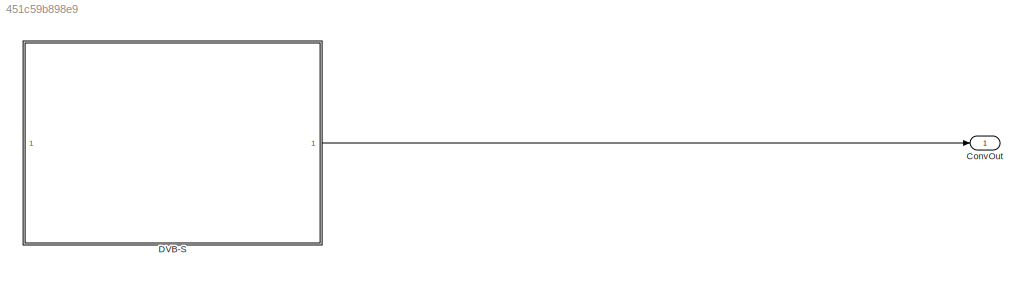
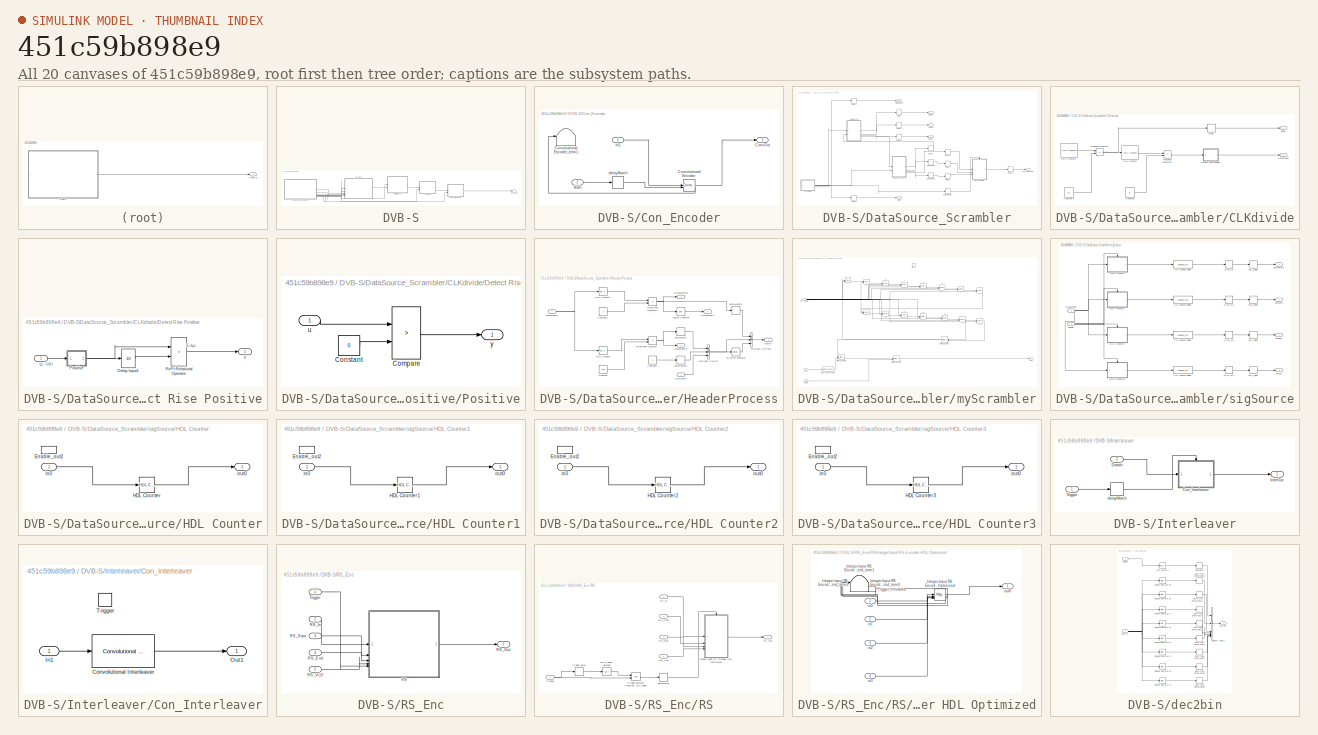
[diagram: thumbnail index - all 20 canvases of the model, root first then tree order]
MODEL slx_451c59b898e9
KIND model
CONFIG AbsTol = auto
CONFIG EnableMultiTasking = off
CONFIG FixedStep = auto
CONFIG MaxStep = auto
CONFIG MinStep = auto
CONFIG RelTol = 1e-3
CONFIG SampleTimeConstraint = Unconstrained
CONFIG SolverName = VariableStepAuto
CONFIG StartTime = 0.0
CONFIG StopTime = 10.0
WORKSPACE source: mxarray member
WORKSPACE HDLVAXIManagerConfig: hdlverifier.internal.AXIMaster.ConfigParams (value not decoded)
BLOCK [Outport] ConvOut
  VectorParamsAs1DForOutWhenUnconnected = off
BLOCK [SubSystem] DVB-S
BLOCK [SubSystem] DVB-S/Con_Encoder
BLOCK [Outport] DVB-S/Con_Encoder/ConvOut
  SampleTime = 5e-09
BLOCK [Reference] DVB-S/Con_Encoder/Convolutional Encoder  REF=whdledac/Convolutional Encoder
  SourceBlock = whdledac/Convolutional Encoder
  SourceType = Convolutional Encoder
BLOCK [Terminator] DVB-S/Con_Encoder/Convolutional Encoder_term1
BLOCK [Inport] DVB-S/Con_Encoder/In1
  OutDataTypeStr = boolean
  PortDimensions = 1
  SampleTime = 5e-09
BLOCK [Inport] DVB-S/Con_Encoder/VldIn
  OutDataTypeStr = boolean
  Port = 2
  PortDimensions = 1
  SampleTime = 5e-09
BLOCK [Delay] DVB-S/Con_Encoder/delayMatch
  DelayLength = double(1)
  InitialCondition = 0
  InputPortMap = u0
  SampleTime = 5e-09
BLOCK [Outport] DVB-S/ConvOut
  SampleTime = 5e-09
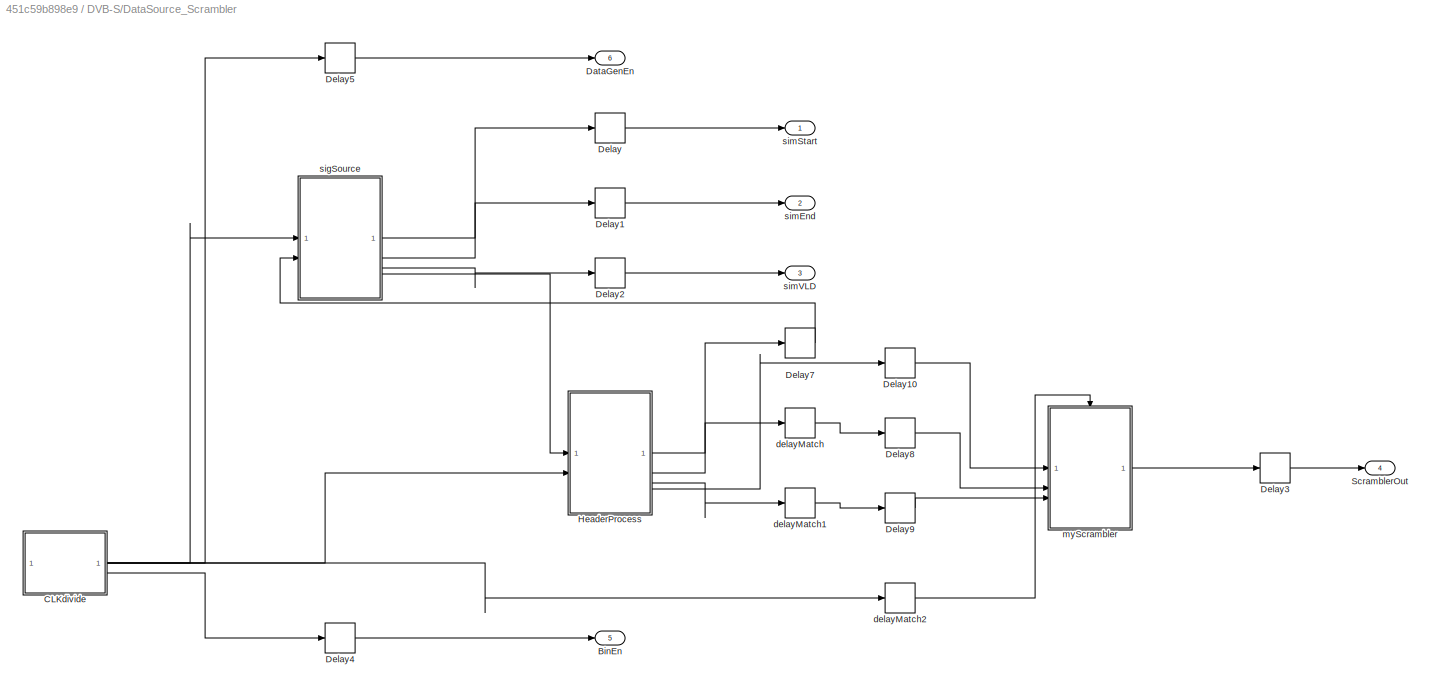
BLOCK [SubSystem] DVB-S/DataSource_Scrambler
BLOCK [Outport] DVB-S/DataSource_Scrambler/BinEn
  Port = 5
  SampleTime = 5e-09
  VectorParamsAs1DForOutWhenUnconnected = off
BLOCK [SubSystem] DVB-S/DataSource_Scrambler/CLKdivide
BLOCK [Outport] DVB-S/DataSource_Scrambler/CLKdivide/BinEn
  Port = 2
  SampleTime = 5e-09
  VectorParamsAs1DForOutWhenUnconnected = off
BLOCK [Constant] DVB-S/DataSource_Scrambler/CLKdivide/Constant
  OutDataTypeStr = uint8
  SampleTime = 1/fs
  Value = 8
  VectorParams1D = off
BLOCK [Constant] DVB-S/DataSource_Scrambler/CLKdivide/Constant1
  OutDataTypeStr = uint8
  SampleTime = 1/fs
  Value = 25
  VectorParams1D = off
BLOCK [Outport] DVB-S/DataSource_Scrambler/CLKdivide/DataGenEn
  SampleTime = 5e-09
  VectorParamsAs1DForOutWhenUnconnected = off
BLOCK [Delay] DVB-S/DataSource_Scrambler/CLKdivide/Delay
  DelayLength = 1
  InputPortMap = u0
BLOCK [SubSystem] DVB-S/DataSource_Scrambler/CLKdivide/Detect Rise Positive
BLOCK [UnitDelay] DVB-S/DataSource_Scrambler/CLKdivide/Detect Rise Positive/Delay Input1
  Description = Store in Global RAM
  DisableCoverage = on
  HasFrameUpgradeWarning = on
  InitialCondition = vinit
  SampleTime = -1
BLOCK [RelationalOperator] DVB-S/DataSource_Scrambler/CLKdivide/Detect Rise Positive/FixPt Relational Operator
  InputSameDT = off
  Operator = >
  OutDataTypeStr = boolean
  ZeroCross = off
BLOCK [SubSystem] DVB-S/DataSource_Scrambler/CLKdivide/Detect Rise Positive/Positive
BLOCK [RelationalOperator] DVB-S/DataSource_Scrambler/CLKdivide/Detect Rise Positive/Positive/Compare
  Operator = >
  OutDataTypeStr = boolean
  ZeroCross = off
BLOCK [Constant] DVB-S/DataSource_Scrambler/CLKdivide/Detect Rise Positive/Positive/Constant
  DisableCoverage = on
  OutDataTypeStr = Inherit: Inherit via back propagation
  PreserveConstantTs = on
  SampleTime = -1
  Value = 0
BLOCK [Inport] DVB-S/DataSource_Scrambler/CLKdivide/Detect Rise Positive/Positive/u
  OutDataTypeStr = boolean
  SampleTime = 5e-09
BLOCK [Outport] DVB-S/DataSource_Scrambler/CLKdivide/Detect Rise Positive/Positive/y
  SampleTime = 5e-09
BLOCK [Inport] DVB-S/DataSource_Scrambler/CLKdivide/Detect Rise Positive/U
  OutDataTypeStr = boolean
  SampleTime = 5e-09
BLOCK [Outport] DVB-S/DataSource_Scrambler/CLKdivide/Detect Rise Positive/Y
  SampleTime = 5e-09
BLOCK [Reference] DVB-S/DataSource_Scrambler/CLKdivide/HDL Counter  REF=hdlsllib/Sources/HDL Counter
  SourceBlock = hdlsllib/Sources/HDL Counter
  SourceType = HDL Counter
BLOCK [Reference] DVB-S/DataSource_Scrambler/CLKdivide/HDL Counter2  REF=hdlsllib/Sources/HDL Counter
  SourceBlock = hdlsllib/Sources/HDL Counter
  SourceType = HDL Counter
BLOCK [RelationalOperator] DVB-S/DataSource_Scrambler/CLKdivide/Relational Operator
  InputSameDT = off
  Operator = ==
  OutDataTypeStr = boolean
BLOCK [RelationalOperator] DVB-S/DataSource_Scrambler/CLKdivide/Relational Operator1
  InputSameDT = off
  Operator = ==
  OutDataTypeStr = boolean
BLOCK [Outport] DVB-S/DataSource_Scrambler/DataGenEn
  Port = 6
  SampleTime = 5e-09
  VectorParamsAs1DForOutWhenUnconnected = off
BLOCK [Delay] DVB-S/DataSource_Scrambler/Delay
  DelayLength = double(1)
  InitialCondition = 0
  InputPortMap = u0
  SampleTime = 5e-09
BLOCK [Delay] DVB-S/DataSource_Scrambler/Delay1
  DelayLength = double(2)
  InitialCondition = 0
  InputPortMap = u0
  SampleTime = 5e-09
BLOCK [Delay] DVB-S/DataSource_Scrambler/Delay10
  DelayLength = double(1)
  InitialCondition = 0
  InputPortMap = u0
  SampleTime = 5e-09
BLOCK [Delay] DVB-S/DataSource_Scrambler/Delay2
  DelayLength = double(1)
  InitialCondition = 0
  InputPortMap = u0
  SampleTime = 5e-09
BLOCK [Delay] DVB-S/DataSource_Scrambler/Delay3
  DelayLength = double(1)
  InitialCondition = 0
  InputPortMap = u0
  SampleTime = 5e-09
BLOCK [Delay] DVB-S/DataSource_Scrambler/Delay4
  DelayLength = double(1)
  InitialCondition = 0
  InputPortMap = u0
  SampleTime = 5e-09
BLOCK [Delay] DVB-S/DataSource_Scrambler/Delay5
  DelayLength = double(1)
  InitialCondition = 0
  InputPortMap = u0
  SampleTime = 5e-09
BLOCK [Delay] DVB-S/DataSource_Scrambler/Delay7
  DelayLength = double(1)
  InitialCondition = 0
  InputPortMap = u0
  SampleTime = 5e-09
BLOCK [Delay] DVB-S/DataSource_Scrambler/Delay8
  DelayLength = double(1)
  InitialCondition = 0
  InputPortMap = u0
  SampleTime = 5e-09
BLOCK [Delay] DVB-S/DataSource_Scrambler/Delay9
  DelayLength = double(1)
  InitialCondition = 0
  InputPortMap = u0
  SampleTime = 5e-09
BLOCK [SubSystem] DVB-S/DataSource_Scrambler/HeaderProcess
BLOCK [Reference] DVB-S/DataSource_Scrambler/HeaderProcess/Bitwise Operator  REF=simulink/Logic and Bit
Operations/Bitwise
Operator
  SourceBlock = simulink/Logic and Bit\nOperations/Bitwise\nOperator
  SourceType = Bitwise Operator
BLOCK [Constant] DVB-S/DataSource_Scrambler/HeaderProcess/Constant
  OutDataTypeStr = uint8
  SampleTime = 5e-09
  Value = 188
BLOCK [Constant] DVB-S/DataSource_Scrambler/HeaderProcess/Constant1
  OutDataTypeStr = uint8
  SampleTime = 5e-09
  Value = 0
BLOCK [Constant] DVB-S/DataSource_Scrambler/HeaderProcess/Constant2
  OutDataTypeStr = uint8
  SampleTime = 5e-09
  Value = 0
BLOCK [Outport] DVB-S/DataSource_Scrambler/HeaderProcess/DataGenEN
  SampleTime = 5e-09
  VectorParamsAs1DForOutWhenUnconnected = off
BLOCK [Inport] DVB-S/DataSource_Scrambler/HeaderProcess/DataGenEn
  OutDataTypeStr = boolean
  Port = 2
  PortDimensions = 1
  SampleTime = 5e-09
BLOCK [Outport] DVB-S/DataSource_Scrambler/HeaderProcess/DataIn
  Port = 4
  SampleTime = 5e-09
BLOCK [Reference] DVB-S/DataSource_Scrambler/HeaderProcess/HDL Counter  REF=hdlsllib/Sources/HDL Counter
  SourceBlock = hdlsllib/Sources/HDL Counter
  SourceType = HDL Counter
BLOCK [Reference] DVB-S/DataSource_Scrambler/HeaderProcess/HDL Counter1  REF=hdlsllib/Sources/HDL Counter
  SourceBlock = hdlsllib/Sources/HDL Counter
  SourceType = HDL Counter
BLOCK [Logic] DVB-S/DataSource_Scrambler/HeaderProcess/Logical Operator
  AllPortsSameDT = off
  Inputs = 1
  Operator = NOT
  OutDataTypeStr = boolean
  SampleTime = 5e-09
BLOCK [MultiPortSwitch] DVB-S/DataSource_Scrambler/HeaderProcess/Multiport Switch
  DataPortIndices = { double(0) double(1)}
  DataPortOrder = Specify indices
  DiagnosticForDefault = None
  InputSameDT = off
  Inputs = 2
  OutDataTypeStr = uint8
  SampleTime = 5e-09
  SaturateOnIntegerOverflow = off
BLOCK [MultiPortSwitch] DVB-S/DataSource_Scrambler/HeaderProcess/Multiport Switch1
  DataPortIndices = { double(0) double(1)}
  DataPortOrder = Specify indices
  DiagnosticForDefault = None
  InputSameDT = off
  Inputs = 2
  OutDataTypeStr = uint8
  SampleTime = 5e-09
  SaturateOnIntegerOverflow = off
BLOCK [RelationalOperator] DVB-S/DataSource_Scrambler/HeaderProcess/Relational Operator
  InputSameDT = off
  Operator = <=
  OutDataTypeStr = boolean
  SampleTime = 5e-09
BLOCK [RelationalOperator] DVB-S/DataSource_Scrambler/HeaderProcess/Relational Operator1
  InputSameDT = off
  Operator = ==
  OutDataTypeStr = boolean
  SampleTime = 5e-09
BLOCK [Outport] DVB-S/DataSource_Scrambler/HeaderProcess/ScrambleEn
  Port = 2
  SampleTime = 5e-09
  VectorParamsAs1DForOutWhenUnconnected = off
BLOCK [Outport] DVB-S/DataSource_Scrambler/HeaderProcess/ScrambleRst
  Port = 3
  SampleTime = 5e-09
  VectorParamsAs1DForOutWhenUnconnected = off
BLOCK [Delay] DVB-S/DataSource_Scrambler/HeaderProcess/delayMatch
  DelayLength = double(1)
  InitialCondition = 0
  InputPortMap = u0
  SampleTime = 5e-09
BLOCK [Delay] DVB-S/DataSource_Scrambler/HeaderProcess/delayMatch1
  DelayLength = double(1)
  InitialCondition = 0
  InputPortMap = u0
  SampleTime = 5e-09
BLOCK [Delay] DVB-S/DataSource_Scrambler/HeaderProcess/delayMatch2
  DelayLength = double(1)
  InitialCondition = 0
  InputPortMap = u0
  SampleTime = 5e-09
BLOCK [Inport] DVB-S/DataSource_Scrambler/HeaderProcess/simDataIn
  OutDataTypeStr = uint8
  PortDimensions = 1
  SampleTime = 5e-09
BLOCK [Outport] DVB-S/DataSource_Scrambler/ScramblerOut
  Port = 4
  SampleTime = 5e-09
BLOCK [Delay] DVB-S/DataSource_Scrambler/delayMatch
  DelayLength = double(1)
  InitialCondition = 0
  InputPortMap = u0
  SampleTime = 5e-09
BLOCK [Delay] DVB-S/DataSource_Scrambler/delayMatch1
  DelayLength = double(1)
  InitialCondition = 0
  InputPortMap = u0
  SampleTime = 5e-09
BLOCK [Delay] DVB-S/DataSource_Scrambler/delayMatch2
  DelayLength = double(1)
  InitialCondition = 0
  InputPortMap = u0
  SampleTime = 5e-09
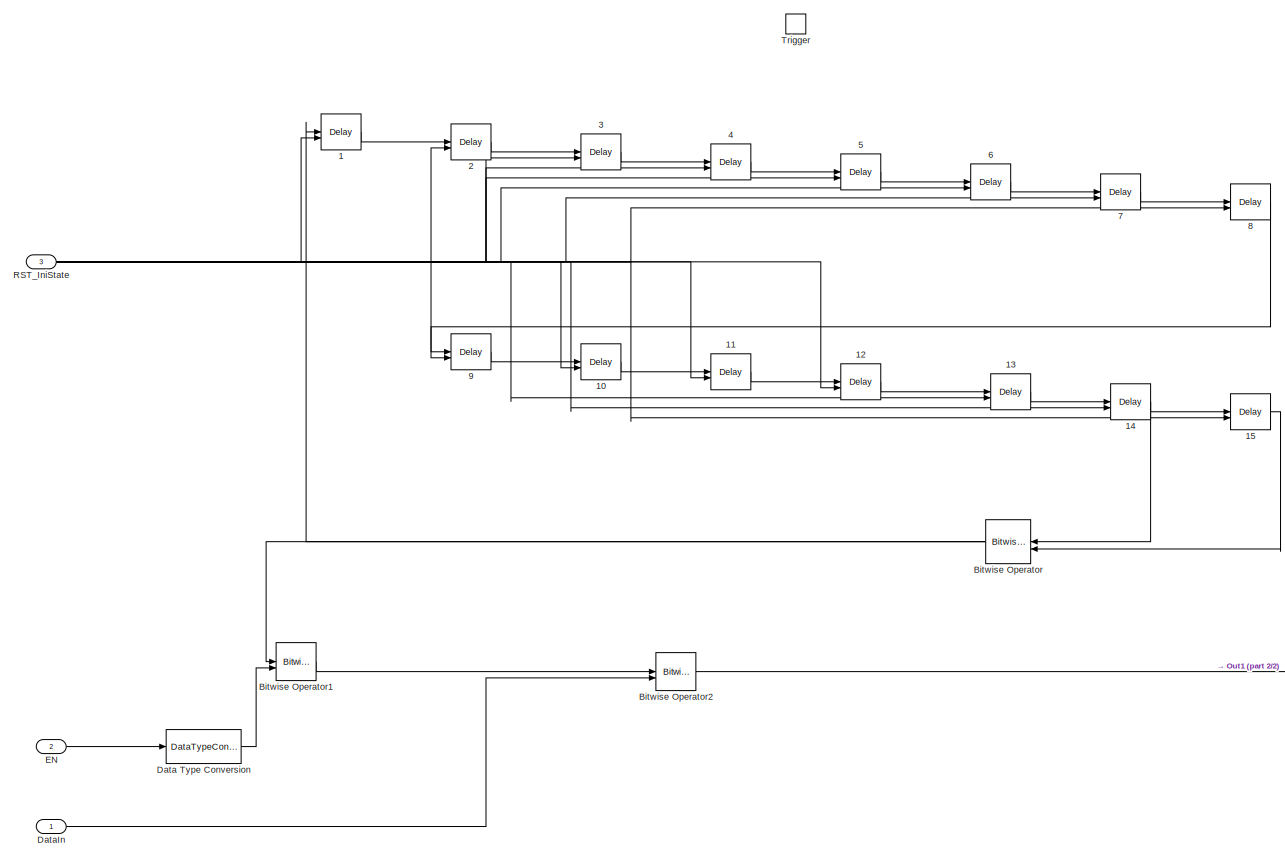
[diagram: DVB-S/DataSource_Scrambler/myScrambler - part 1/2, most of the canvas]
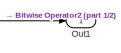
[diagram: DVB-S/DataSource_Scrambler/myScrambler - part 2/2, bottom right region]
BLOCK [SubSystem] DVB-S/DataSource_Scrambler/myScrambler
BLOCK [Delay] DVB-S/DataSource_Scrambler/myScrambler/1
  DelayLength = 1
  ExternalReset = Level
  InitialCondition = iniStates(1)
  InputPortMap = u0,r5
BLOCK [Delay] DVB-S/DataSource_Scrambler/myScrambler/10
  DelayLength = 1
  ExternalReset = Level
  InitialCondition = iniStates(10)
  InputPortMap = u0,r5
BLOCK [Delay] DVB-S/DataSource_Scrambler/myScrambler/11
  DelayLength = 1
  ExternalReset = Level
  InitialCondition = iniStates(11)
  InputPortMap = u0,r5
BLOCK [Delay] DVB-S/DataSource_Scrambler/myScrambler/12
  DelayLength = 1
  ExternalReset = Level
  InitialCondition = iniStates(12)
  InputPortMap = u0,r5
BLOCK [Delay] DVB-S/DataSource_Scrambler/myScrambler/13
  DelayLength = 1
  ExternalReset = Level
  InitialCondition = iniStates(13)
  InputPortMap = u0,r5
BLOCK [Delay] DVB-S/DataSource_Scrambler/myScrambler/14
  DelayLength = 1
  ExternalReset = Level
  InitialCondition = iniStates(14)
  InputPortMap = u0,r5
BLOCK [Delay] DVB-S/DataSource_Scrambler/myScrambler/15
  DelayLength = 1
  ExternalReset = Level
  InitialCondition = iniStates(15)
  InputPortMap = u0,r5
BLOCK [Delay] DVB-S/DataSource_Scrambler/myScrambler/2
  DelayLength = 1
  ExternalReset = Level
  InitialCondition = iniStates(2)
  InputPortMap = u0,r5
BLOCK [Delay] DVB-S/DataSource_Scrambler/myScrambler/3
  DelayLength = 1
  ExternalReset = Level
  InitialCondition = iniStates(3)
  InputPortMap = u0,r5
BLOCK [Delay] DVB-S/DataSource_Scrambler/myScrambler/4
  DelayLength = 1
  ExternalReset = Level
  InitialCondition = iniStates(4)
  InputPortMap = u0,r5
BLOCK [Delay] DVB-S/DataSource_Scrambler/myScrambler/5
  DelayLength = 1
  ExternalReset = Level
  InitialCondition = iniStates(5)
  InputPortMap = u0,r5
BLOCK [Delay] DVB-S/DataSource_Scrambler/myScrambler/6
  DelayLength = 1
  ExternalReset = Level
  InitialCondition = iniStates(6)
  InputPortMap = u0,r5
BLOCK [Delay] DVB-S/DataSource_Scrambler/myScrambler/7
  DelayLength = 1
  ExternalReset = Level
  InitialCondition = iniStates(7)
  InputPortMap = u0,r5
BLOCK [Delay] DVB-S/DataSource_Scrambler/myScrambler/8
  DelayLength = 1
  ExternalReset = Level
  InitialCondition = iniStates(8)
  InputPortMap = u0,r5
BLOCK [Delay] DVB-S/DataSource_Scrambler/myScrambler/9
  DelayLength = 1
  ExternalReset = Level
  InitialCondition = iniStates(9)
  InputPortMap = u0,r5
BLOCK [Reference] DVB-S/DataSource_Scrambler/myScrambler/Bitwise Operator  REF=simulink/Logic and Bit
Operations/Bitwise
Operator
  SourceBlock = simulink/Logic and Bit\nOperations/Bitwise\nOperator
  SourceType = Bitwise Operator
BLOCK [Reference] DVB-S/DataSource_Scrambler/myScrambler/Bitwise Operator1  REF=simulink/Logic and Bit
Operations/Bitwise
Operator
  SourceBlock = simulink/Logic and Bit\nOperations/Bitwise\nOperator
  SourceType = Bitwise Operator
BLOCK [Reference] DVB-S/DataSource_Scrambler/myScrambler/Bitwise Operator2  REF=simulink/Logic and Bit
Operations/Bitwise
Operator
  SourceBlock = simulink/Logic and Bit\nOperations/Bitwise\nOperator
  SourceType = Bitwise Operator
BLOCK [DataTypeConversion] DVB-S/DataSource_Scrambler/myScrambler/Data Type Conversion
  OutDataTypeStr = uint8
  RndMeth = Floor
  SaturateOnIntegerOverflow = off
BLOCK [Inport] DVB-S/DataSource_Scrambler/myScrambler/DataIn
  OutDataTypeStr = uint8
  PortDimensions = 1
BLOCK [Inport] DVB-S/DataSource_Scrambler/myScrambler/EN
  OutDataTypeStr = boolean
  Port = 2
  PortDimensions = 1
BLOCK [Outport] DVB-S/DataSource_Scrambler/myScrambler/Out1
  InitialOutput = 0
BLOCK [Inport] DVB-S/DataSource_Scrambler/myScrambler/RST_IniState
  OutDataTypeStr = boolean
  Port = 3
  PortDimensions = 1
BLOCK [TriggerPort] DVB-S/DataSource_Scrambler/myScrambler/Trigger
  OutDataTypeStr = boolean
  PortDimensions = 1
  StatesWhenEnabling = held
  VariantControl = (inherit)
BLOCK [SubSystem] DVB-S/DataSource_Scrambler/sigSource
BLOCK [Lookup_n-D] DVB-S/DataSource_Scrambler/sigSource/1-D Lookup Table
  BreakpointsForDimension1 = [0:18800-1]'
  BreakpointsForDimension1FirstPoint = 10
  BreakpointsForDimension1Spacing = 12
  BreakpointsForDimension2FirstPoint = 10
  BreakpointsForDimension2Spacing = 12
  IndexSearchMethod = Evenly spaced points
  InputPortMap = u0
  InternalRulePriority = Speed
  InterpMethod = Flat
  LookupTableObject = ''
  NumberOfTableDimensions = 1
  OutDataTypeStr = uint8
  RndMeth = Simplest
  Table = sourceData
BLOCK [Lookup_n-D] DVB-S/DataSource_Scrambler/sigSource/1-D Lookup Table1
  BreakpointsForDimension1 = [0:204-1]'
  BreakpointsForDimension1FirstPoint = 10
  BreakpointsForDimension1Spacing = 12
  BreakpointsForDimension2FirstPoint = 10
  BreakpointsForDimension2Spacing = 12
  IndexSearchMethod = Evenly spaced points
  InputPortMap = u0
  InternalRulePriority = Speed
  InterpMethod = Flat
  LookupTableObject = ''
  NumberOfTableDimensions = 1
  OutDataTypeStr = uint8
  RndMeth = Simplest
  Table = ctrlIn(:,1)
BLOCK [Lookup_n-D] DVB-S/DataSource_Scrambler/sigSource/1-D Lookup Table2
  BreakpointsForDimension1 = [0:204-1]'
  BreakpointsForDimension1FirstPoint = 10
  BreakpointsForDimension1Spacing = 12
  BreakpointsForDimension2FirstPoint = 10
  BreakpointsForDimension2Spacing = 12
  IndexSearchMethod = Evenly spaced points
  InputPortMap = u0
  InternalRulePriority = Speed
  InterpMethod = Flat
  LookupTableObject = ''
  NumberOfTableDimensions = 1
  OutDataTypeStr = uint8
  RndMeth = Simplest
  Table = ctrlIn(:,2)
BLOCK [Lookup_n-D] DVB-S/DataSource_Scrambler/sigSource/1-D Lookup Table3
  BreakpointsForDimension1 = [0:204-1]'
  BreakpointsForDimension1FirstPoint = 10
  BreakpointsForDimension1Spacing = 12
  BreakpointsForDimension2FirstPoint = 10
  BreakpointsForDimension2Spacing = 12
  IndexSearchMethod = Evenly spaced points
  InputPortMap = u0
  InternalRulePriority = Speed
  InterpMethod = Flat
  LookupTableObject = ''
  NumberOfTableDimensions = 1
  OutDataTypeStr = uint8
  RndMeth = Simplest
  Table = ctrlIn(:,3)
BLOCK [DataTypeConversion] DVB-S/DataSource_Scrambler/sigSource/DATA_IN
  OutDataTypeStr = fixdt(0,8,0)
BLOCK [DataTypeConversion] DVB-S/DataSource_Scrambler/sigSource/DATA_IN1
  OutDataTypeStr = boolean
  RndMeth = Floor
  SampleTime = 5e-09
  SaturateOnIntegerOverflow = off
BLOCK [DataTypeConversion] DVB-S/DataSource_Scrambler/sigSource/DATA_IN2
  OutDataTypeStr = boolean
  RndMeth = Floor
  SampleTime = 5e-09
  SaturateOnIntegerOverflow = off
BLOCK [DataTypeConversion] DVB-S/DataSource_Scrambler/sigSource/DATA_IN3
  OutDataTypeStr = boolean
  RndMeth = Floor
  SampleTime = 5e-09
  SaturateOnIntegerOverflow = off
BLOCK [Inport] DVB-S/DataSource_Scrambler/sigSource/DataGenEn
  OutDataTypeStr = boolean
  PortDimensions = 1
  SampleTime = 5e-09
BLOCK [Inport] DVB-S/DataSource_Scrambler/sigSource/Enable
  OutDataTypeStr = boolean
  Port = 2
  SampleTime = 5e-09
BLOCK [SubSystem] DVB-S/DataSource_Scrambler/sigSource/HDL Counter
  MinAlgLoopOccurrences = on
BLOCK [EnablePort] DVB-S/DataSource_Scrambler/sigSource/HDL Counter/Enable_out2
  OutDataTypeStr = boolean
BLOCK [Reference] DVB-S/DataSource_Scrambler/sigSource/HDL Counter/HDL Counter  REF=hdlsllib/Sources/HDL Counter
  SourceBlock = hdlsllib/Sources/HDL Counter
  SourceType = HDL Counter
BLOCK [Inport] DVB-S/DataSource_Scrambler/sigSource/HDL Counter/in0
  OutDataTypeStr = boolean
  SampleTime = 5e-09
BLOCK [Outport] DVB-S/DataSource_Scrambler/sigSource/HDL Counter/out0
  InitialOutput = 0
  OutDataTypeStr = uint32
  SampleTime = 5e-09
BLOCK [SubSystem] DVB-S/DataSource_Scrambler/sigSource/HDL Counter1
  MinAlgLoopOccurrences = on
BLOCK [EnablePort] DVB-S/DataSource_Scrambler/sigSource/HDL Counter1/Enable_out2
  OutDataTypeStr = boolean
BLOCK [Reference] DVB-S/DataSource_Scrambler/sigSource/HDL Counter1/HDL Counter1  REF=hdlsllib/Sources/HDL Counter
  SourceBlock = hdlsllib/Sources/HDL Counter
  SourceType = HDL Counter
BLOCK [Inport] DVB-S/DataSource_Scrambler/sigSource/HDL Counter1/in0
  OutDataTypeStr = boolean
  SampleTime = 5e-09
BLOCK [Outport] DVB-S/DataSource_Scrambler/sigSource/HDL Counter1/out0
  InitialOutput = 0
  OutDataTypeStr = uint8
  SampleTime = 5e-09
BLOCK [SubSystem] DVB-S/DataSource_Scrambler/sigSource/HDL Counter2
  MinAlgLoopOccurrences = on
BLOCK [EnablePort] DVB-S/DataSource_Scrambler/sigSource/HDL Counter2/Enable_out2
  OutDataTypeStr = boolean
BLOCK [Reference] DVB-S/DataSource_Scrambler/sigSource/HDL Counter2/HDL Counter2  REF=hdlsllib/Sources/HDL Counter
  SourceBlock = hdlsllib/Sources/HDL Counter
  SourceType = HDL Counter
BLOCK [Inport] DVB-S/DataSource_Scrambler/sigSource/HDL Counter2/in0
  OutDataTypeStr = boolean
  SampleTime = 5e-09
BLOCK [Outport] DVB-S/DataSource_Scrambler/sigSource/HDL Counter2/out0
  InitialOutput = 0
  OutDataTypeStr = uint8
  SampleTime = 5e-09
BLOCK [SubSystem] DVB-S/DataSource_Scrambler/sigSource/HDL Counter3
  MinAlgLoopOccurrences = on
BLOCK [EnablePort] DVB-S/DataSource_Scrambler/sigSource/HDL Counter3/Enable_out2
  OutDataTypeStr = boolean
BLOCK [Reference] DVB-S/DataSource_Scrambler/sigSource/HDL Counter3/HDL Counter3  REF=hdlsllib/Sources/HDL Counter
  SourceBlock = hdlsllib/Sources/HDL Counter
  SourceType = HDL Counter
BLOCK [Inport] DVB-S/DataSource_Scrambler/sigSource/HDL Counter3/in0
  OutDataTypeStr = boolean
  SampleTime = 5e-09
BLOCK [Outport] DVB-S/DataSource_Scrambler/sigSource/HDL Counter3/out0
  InitialOutput = 0
  OutDataTypeStr = uint8
  SampleTime = 5e-09
BLOCK [Delay] DVB-S/DataSource_Scrambler/sigSource/out_0_pipe
  DelayLength = double(1)
  InitialCondition = 0
  InputPortMap = u0
BLOCK [Delay] DVB-S/DataSource_Scrambler/sigSource/out_1_pipe
  DelayLength = double(1)
  InitialCondition = 0
  InputPortMap = u0
BLOCK [Delay] DVB-S/DataSource_Scrambler/sigSource/out_2_pipe
  DelayLength = double(1)
  InitialCondition = 0
  InputPortMap = u0
BLOCK [Delay] DVB-S/DataSource_Scrambler/sigSource/out_3_pipe
  DelayLength = double(1)
  InitialCondition = 0
  InputPortMap = u0
BLOCK [Outport] DVB-S/DataSource_Scrambler/sigSource/simDataIn
  InitialOutput = 0
  Port = 4
  SampleTime = 5e-09
BLOCK [Outport] DVB-S/DataSource_Scrambler/sigSource/simEN
  InitialOutput = 0
  Port = 3
  SampleTime = 5e-09
BLOCK [Outport] DVB-S/DataSource_Scrambler/sigSource/simEnd
  InitialOutput = 0
  Port = 2
  SampleTime = 5e-09
BLOCK [Outport] DVB-S/DataSource_Scrambler/sigSource/simStart
  InitialOutput = 0
  SampleTime = 5e-09
BLOCK [Outport] DVB-S/DataSource_Scrambler/simEnd
  Port = 2
  SampleTime = 5e-09
BLOCK [Outport] DVB-S/DataSource_Scrambler/simStart
  SampleTime = 5e-09
BLOCK [Outport] DVB-S/DataSource_Scrambler/simVLD 
  Port = 3
  SampleTime = 5e-09
BLOCK [SubSystem] DVB-S/Interleaver
BLOCK [SubSystem] DVB-S/Interleaver/Con_Interleaver
BLOCK [Reference] DVB-S/Interleaver/Con_Interleaver/Convolutional Interleaver  REF=commcnvintrlv2/Convolutional
Interleaver
  LibrarySourceBlock = commhdlinterleave/Convolutional\nInterleaver
  SourceBlock = commcnvintrlv2/Convolutional\nInterleaver
  SourceType = Convolutional Interleaver
BLOCK [Inport] DVB-S/Interleaver/Con_Interleaver/In1
  OutDataTypeStr = uint8
  PortDimensions = 1
BLOCK [Outport] DVB-S/Interleaver/Con_Interleaver/Out1
  InitialOutput = 0
BLOCK [TriggerPort] DVB-S/Interleaver/Con_Interleaver/Trigger
  OutDataTypeStr = boolean
  PortDimensions = 1
  StatesWhenEnabling = held
  VariantControl = (inherit)
BLOCK [Inport] DVB-S/Interleaver/DataIn
  OutDataTypeStr = uint8
  Port = 2
  PortDimensions = 1
  SampleTime = 5e-09
BLOCK [Outport] DVB-S/Interleaver/InterOut
  SampleTime = 5e-09
BLOCK [Inport] DVB-S/Interleaver/Trigger
  OutDataTypeStr = boolean
  PortDimensions = 1
  SampleTime = 5e-09
BLOCK [Delay] DVB-S/Interleaver/delayMatch
  DelayLength = double(1)
  InitialCondition = 0
  InputPortMap = u0
  SampleTime = 5e-09
BLOCK [SubSystem] DVB-S/RS_Enc
BLOCK [SubSystem] DVB-S/RS_Enc/RS
BLOCK [SubSystem] DVB-S/RS_Enc/RS/Integer-Input RS Encoder HDL Optimized
  MinAlgLoopOccurrences = on
BLOCK [Reference] DVB-S/RS_Enc/RS/Integer-Input RS Encoder HDL Optimized/Integer-Input RS Encoder HDL Optimized  REF=commhdlblkcod/Integer-Input
RS Encoder
HDL Optimized
  SourceBlock = commhdlblkcod/Integer-Input\nRS Encoder\nHDL Optimized
  SourceType = Integer-Input RS Encoder HDL Optimized
BLOCK [Terminator] DVB-S/RS_Enc/RS/Integer-Input RS Encoder HDL Optimized/Integer-Input RS Encoder HDL Optimized_term1
BLOCK [Terminator] DVB-S/RS_Enc/RS/Integer-Input RS Encoder HDL Optimized/Integer-Input RS Encoder HDL Optimized_term2
BLOCK [Terminator] DVB-S/RS_Enc/RS/Integer-Input RS Encoder HDL Optimized/Integer-Input RS Encoder HDL Optimized_term3
BLOCK [EnablePort] DVB-S/RS_Enc/RS/Integer-Input RS Encoder HDL Optimized/Trigger_emulated
  OutDataTypeStr = boolean
BLOCK [Inport] DVB-S/RS_Enc/RS/Integer-Input RS Encoder HDL Optimized/in0
  OutDataTypeStr = uint8
  SampleTime = 5e-09
BLOCK [Inport] DVB-S/RS_Enc/RS/Integer-Input RS Encoder HDL Optimized/in1
  OutDataTypeStr = boolean
  Port = 2
  SampleTime = 5e-09
BLOCK [Inport] DVB-S/RS_Enc/RS/Integer-Input RS Encoder HDL Optimized/in2
  OutDataTypeStr = boolean
  Port = 3
  SampleTime = 5e-09
BLOCK [Inport] DVB-S/RS_Enc/RS/Integer-Input RS Encoder HDL Optimized/in3
  OutDataTypeStr = boolean
  Port = 4
  SampleTime = 5e-09
BLOCK [Outport] DVB-S/RS_Enc/RS/Integer-Input RS Encoder HDL Optimized/out0
  InitialOutput = 0
  OutDataTypeStr = uint8
  SampleTime = 5e-09
BLOCK [Inport] DVB-S/RS_Enc/RS/RS_End
  OutDataTypeStr = boolean
  Port = 3
  PortDimensions = 1
  SampleTime = 5e-09
BLOCK [Inport] DVB-S/RS_Enc/RS/RS_In
  OutDataTypeStr = uint8
  PortDimensions = 1
  SampleTime = 5e-09
BLOCK [Outport] DVB-S/RS_Enc/RS/RS_Out
  InitialOutput = 0
  OutDataTypeStr = uint8
  SampleTime = 5e-09
BLOCK [Inport] DVB-S/RS_Enc/RS/RS_Start
  OutDataTypeStr = boolean
  Port = 2
  PortDimensions = 1
  SampleTime = 5e-09
BLOCK [Inport] DVB-S/RS_Enc/RS/RS_VLD
  OutDataTypeStr = boolean
  Port = 4
  PortDimensions = 1
  SampleTime = 5e-09
BLOCK [Inport] DVB-S/RS_Enc/RS/Trigger
  OutDataTypeStr = boolean
  Port = 5
  SampleTime = 5e-09
BLOCK [Delay] DVB-S/RS_Enc/RS/Trigger_delay
  DelayLength = double(1)
  InitialCondition = 1
  InputPortMap = u0
BLOCK [Logic] DVB-S/RS_Enc/RS/Trigger_delayed_inverted_and_Trigger
  AllPortsSameDT = off
  OutDataTypeStr = boolean
  SampleTime = 5e-09
BLOCK [Delay] DVB-S/RS_Enc/RS/delayMatch
  DelayLength = double(1)
  InitialCondition = 0
  InputPortMap = u0
BLOCK [Logic] DVB-S/RS_Enc/RS/not_Trigger_delayed
  AllPortsSameDT = off
  Inputs = 1
  Operator = NOT
  OutDataTypeStr = boolean
  SampleTime = 5e-09
BLOCK [Inport] DVB-S/RS_Enc/RS_End
  OutDataTypeStr = boolean
  Port = 4
  PortDimensions = 1
  SampleTime = 5e-09
BLOCK [Inport] DVB-S/RS_Enc/RS_In
  OutDataTypeStr = uint8
  Port = 2
  PortDimensions = 1
  SampleTime = 5e-09
BLOCK [Outport] DVB-S/RS_Enc/RS_Out
  SampleTime = 5e-09
BLOCK [Inport] DVB-S/RS_Enc/RS_Start
  OutDataTypeStr = boolean
  Port = 3
  PortDimensions = 1
  SampleTime = 5e-09
BLOCK [Inport] DVB-S/RS_Enc/RS_VLD
  OutDataTypeStr = boolean
  Port = 5
  PortDimensions = 1
  SampleTime = 5e-09
BLOCK [Inport] DVB-S/RS_Enc/Trigger
  OutDataTypeStr = boolean
  PortDimensions = 1
  SampleTime = 5e-09
BLOCK [SubSystem] DVB-S/dec2bin
BLOCK [Outport] DVB-S/dec2bin/BIN_OUT
  SampleTime = 5e-09
BLOCK [Inport] DVB-S/dec2bin/BinGen
  OutDataTypeStr = boolean
  Port = 2
  PortDimensions = 1
  SampleTime = 5e-09
BLOCK [Reference] DVB-S/dec2bin/Bitwise Operator12  REF=simulink/Logic and Bit
Operations/Bitwise
Operator
  SourceBlock = simulink/Logic and Bit\nOperations/Bitwise\nOperator
  SourceType = Bitwise Operator
BLOCK [Reference] DVB-S/dec2bin/Bitwise Operator13  REF=simulink/Logic and Bit
Operations/Bitwise
Operator
  SourceBlock = simulink/Logic and Bit\nOperations/Bitwise\nOperator
  SourceType = Bitwise Operator
BLOCK [Reference] DVB-S/dec2bin/Bitwise Operator14  REF=simulink/Logic and Bit
Operations/Bitwise
Operator
  SourceBlock = simulink/Logic and Bit\nOperations/Bitwise\nOperator
  SourceType = Bitwise Operator
BLOCK [Reference] DVB-S/dec2bin/Bitwise Operator15  REF=simulink/Logic and Bit
Operations/Bitwise
Operator
  SourceBlock = simulink/Logic and Bit\nOperations/Bitwise\nOperator
  SourceType = Bitwise Operator
BLOCK [Reference] DVB-S/dec2bin/Bitwise Operator16  REF=simulink/Logic and Bit
Operations/Bitwise
Operator
  SourceBlock = simulink/Logic and Bit\nOperations/Bitwise\nOperator
  SourceType = Bitwise Operator
BLOCK [Reference] DVB-S/dec2bin/Bitwise Operator17  REF=simulink/Logic and Bit
Operations/Bitwise
Operator
  SourceBlock = simulink/Logic and Bit\nOperations/Bitwise\nOperator
  SourceType = Bitwise Operator
BLOCK [Reference] DVB-S/dec2bin/Bitwise Operator18  REF=simulink/Logic and Bit
Operations/Bitwise
Operator
  SourceBlock = simulink/Logic and Bit\nOperations/Bitwise\nOperator
  SourceType = Bitwise Operator
BLOCK [Reference] DVB-S/dec2bin/Bitwise Operator19  REF=simulink/Logic and Bit
Operations/Bitwise
Operator
  SourceBlock = simulink/Logic and Bit\nOperations/Bitwise\nOperator
  SourceType = Bitwise Operator
BLOCK [Inport] DVB-S/dec2bin/DEC_IN
  OutDataTypeStr = uint8
  PortDimensions = 1
  SampleTime = 5e-09
BLOCK [DataTypeConversion] DVB-S/dec2bin/Data Type Conversion12
  OutDataTypeStr = boolean
  RndMeth = Floor
  SampleTime = 5e-09
  SaturateOnIntegerOverflow = off
BLOCK [DataTypeConversion] DVB-S/dec2bin/Data Type Conversion13
  OutDataTypeStr = boolean
  RndMeth = Floor
  SampleTime = 5e-09
  SaturateOnIntegerOverflow = off
BLOCK [DataTypeConversion] DVB-S/dec2bin/Data Type Conversion14
  OutDataTypeStr = boolean
  RndMeth = Floor
  SampleTime = 5e-09
  SaturateOnIntegerOverflow = off
BLOCK [DataTypeConversion] DVB-S/dec2bin/Data Type Conversion15
  OutDataTypeStr = boolean
  RndMeth = Floor
  SampleTime = 5e-09
  SaturateOnIntegerOverflow = off
BLOCK [DataTypeConversion] DVB-S/dec2bin/Data Type Conversion16
  OutDataTypeStr = boolean
  RndMeth = Floor
  SampleTime = 5e-09
  SaturateOnIntegerOverflow = off
BLOCK [DataTypeConversion] DVB-S/dec2bin/Data Type Conversion17
  OutDataTypeStr = boolean
  RndMeth = Floor
  SampleTime = 5e-09
  SaturateOnIntegerOverflow = off
BLOCK [DataTypeConversion] DVB-S/dec2bin/Data Type Conversion18
  OutDataTypeStr = boolean
  RndMeth = Floor
  SampleTime = 5e-09
  SaturateOnIntegerOverflow = off
BLOCK [DataTypeConversion] DVB-S/dec2bin/Data Type Conversion19
  OutDataTypeStr = boolean
  RndMeth = Floor
  SampleTime = 5e-09
  SaturateOnIntegerOverflow = off
BLOCK [Reference] DVB-S/dec2bin/HDL Counter1  REF=hdlsllib/Sources/HDL Counter
  SourceBlock = hdlsllib/Sources/HDL Counter
  SourceType = HDL Counter
BLOCK [MultiPortSwitch] DVB-S/dec2bin/Multiport Switch
  DiagnosticForDefault = None
  InputSameDT = off
  Inputs = 8
  SampleTime = 5e-09
  SaturateOnIntegerOverflow = off
BLOCK [Delay] DVB-S/dec2bin/delayMatch
  DelayLength = double(1)
  InitialCondition = 0
  InputPortMap = u0
  SampleTime = 5e-09
ANNOTATION DVB-S/DataSource_Scrambler/CLKdivide/Detect Rise Positive: Edge
ANNOTATION DVB-S/DataSource_Scrambler/CLKdivide/Detect Rise Positive: U(k)
LINE DVB-S/Con_Encoder/Convolutional Encoder:1 -> DVB-S/Con_Encoder/ConvOut:1
LINE DVB-S/Con_Encoder/Convolutional Encoder:2 -> DVB-S/Con_Encoder/Convolutional Encoder_term1:1
LINE DVB-S/Con_Encoder/In1:1 -> DVB-S/Con_Encoder/Convolutional Encoder:1
LINE DVB-S/Con_Encoder/VldIn:1 -> DVB-S/Con_Encoder/delayMatch:1
LINE DVB-S/Con_Encoder/delayMatch:1 -> DVB-S/Con_Encoder/Convolutional Encoder:2
LINE DVB-S/Con_Encoder:1 -> DVB-S/ConvOut:1
LINE DVB-S/DataSource_Scrambler/CLKdivide/Constant1:1 -> DVB-S/DataSource_Scrambler/CLKdivide/Relational Operator:2
LINE DVB-S/DataSource_Scrambler/CLKdivide/Constant:1 -> DVB-S/DataSource_Scrambler/CLKdivide/Relational Operator1:2
LINE DVB-S/DataSource_Scrambler/CLKdivide/Delay:1 -> DVB-S/DataSource_Scrambler/CLKdivide/BinEn:1
LINE DVB-S/DataSource_Scrambler/CLKdivide/Detect Rise Positive:1 -> DVB-S/DataSource_Scrambler/CLKdivide/DataGenEn:1
LINE DVB-S/DataSource_Scrambler/CLKdivide/HDL Counter2:1 -> DVB-S/DataSource_Scrambler/CLKdivide/Relational Operator:1
LINE DVB-S/DataSource_Scrambler/CLKdivide/HDL Counter:1 -> DVB-S/DataSource_Scrambler/CLKdivide/Relational Operator1:1
LINE DVB-S/DataSource_Scrambler/CLKdivide/Relational Operator1:1 -> DVB-S/DataSource_Scrambler/CLKdivide/Detect Rise Positive:1
NET DVB-S/DataSource_Scrambler/CLKdivide/Relational Operator:1 -> DVB-S/DataSource_Scrambler/CLKdivide/Delay:1, DVB-S/DataSource_Scrambler/CLKdivide/HDL Counter:1
NET DVB-S/DataSource_Scrambler/CLKdivide:1 -> DVB-S/DataSource_Scrambler/Delay5:1, DVB-S/DataSource_Scrambler/HeaderProcess:2, DVB-S/DataSource_Scrambler/delayMatch2:1, DVB-S/DataSource_Scrambler/sigSource:1
LINE DVB-S/DataSource_Scrambler/CLKdivide:2 -> DVB-S/DataSource_Scrambler/Delay4:1
LINE DVB-S/DataSource_Scrambler/Delay10:1 -> DVB-S/DataSource_Scrambler/myScrambler:1
LINE DVB-S/DataSource_Scrambler/Delay1:1 -> DVB-S/DataSource_Scrambler/simEnd:1
LINE DVB-S/DataSource_Scrambler/Delay2:1 -> DVB-S/DataSource_Scrambler/simVLD :1
LINE DVB-S/DataSource_Scrambler/Delay3:1 -> DVB-S/DataSource_Scrambler/ScramblerOut:1
LINE DVB-S/DataSource_Scrambler/Delay4:1 -> DVB-S/DataSource_Scrambler/BinEn:1
LINE DVB-S/DataSource_Scrambler/Delay5:1 -> DVB-S/DataSource_Scrambler/DataGenEn:1
LINE DVB-S/DataSource_Scrambler/Delay7:1 -> DVB-S/DataSource_Scrambler/sigSource:2
LINE DVB-S/DataSource_Scrambler/Delay8:1 -> DVB-S/DataSource_Scrambler/myScrambler:2
LINE DVB-S/DataSource_Scrambler/Delay9:1 -> DVB-S/DataSource_Scrambler/myScrambler:3
LINE DVB-S/DataSource_Scrambler/Delay:1 -> DVB-S/DataSource_Scrambler/simStart:1
LINE DVB-S/DataSource_Scrambler/HeaderProcess/Bitwise Operator:1 -> DVB-S/DataSource_Scrambler/HeaderProcess/Multiport Switch1:3
LINE DVB-S/DataSource_Scrambler/HeaderProcess/Constant1:1 -> DVB-S/DataSource_Scrambler/HeaderProcess/delayMatch1:1
LINE DVB-S/DataSource_Scrambler/HeaderProcess/Constant2:1 -> DVB-S/DataSource_Scrambler/HeaderProcess/Relational Operator1:2
LINE DVB-S/DataSource_Scrambler/HeaderProcess/Constant:1 -> DVB-S/DataSource_Scrambler/HeaderProcess/Relational Operator:2
NET DVB-S/DataSource_Scrambler/HeaderProcess/DataGenEn:1 -> DVB-S/DataSource_Scrambler/HeaderProcess/HDL Counter1:1, DVB-S/DataSource_Scrambler/HeaderProcess/HDL Counter:1
LINE DVB-S/DataSource_Scrambler/HeaderProcess/HDL Counter1:1 -> DVB-S/DataSource_Scrambler/HeaderProcess/Relational Operator1:1
LINE DVB-S/DataSource_Scrambler/HeaderProcess/HDL Counter:1 -> DVB-S/DataSource_Scrambler/HeaderProcess/Relational Operator:1
LINE DVB-S/DataSource_Scrambler/HeaderProcess/Logical Operator:1 -> DVB-S/DataSource_Scrambler/HeaderProcess/ScrambleEn:1
LINE DVB-S/DataSource_Scrambler/HeaderProcess/Multiport Switch1:1 -> DVB-S/DataSource_Scrambler/HeaderProcess/DataIn:1
NET DVB-S/DataSource_Scrambler/HeaderProcess/Multiport Switch:1 -> DVB-S/DataSource_Scrambler/HeaderProcess/Bitwise Operator:1, DVB-S/DataSource_Scrambler/HeaderProcess/Multiport Switch1:2
NET DVB-S/DataSource_Scrambler/HeaderProcess/Relational Operator1:1 -> DVB-S/DataSource_Scrambler/HeaderProcess/Logical Operator:1, DVB-S/DataSource_Scrambler/HeaderProcess/ScrambleRst:1, DVB-S/DataSource_Scrambler/HeaderProcess/delayMatch2:1
NET DVB-S/DataSource_Scrambler/HeaderProcess/Relational Operator:1 -> DVB-S/DataSource_Scrambler/HeaderProcess/DataGenEN:1, DVB-S/DataSource_Scrambler/HeaderProcess/delayMatch:1
LINE DVB-S/DataSource_Scrambler/HeaderProcess/delayMatch1:1 -> DVB-S/DataSource_Scrambler/HeaderProcess/Multiport Switch:2
LINE DVB-S/DataSource_Scrambler/HeaderProcess/delayMatch2:1 -> DVB-S/DataSource_Scrambler/HeaderProcess/Multiport Switch1:1
LINE DVB-S/DataSource_Scrambler/HeaderProcess/delayMatch:1 -> DVB-S/DataSource_Scrambler/HeaderProcess/Multiport Switch:1
LINE DVB-S/DataSource_Scrambler/HeaderProcess/simDataIn:1 -> DVB-S/DataSource_Scrambler/HeaderProcess/Multiport Switch:3
LINE DVB-S/DataSource_Scrambler/HeaderProcess:1 -> DVB-S/DataSource_Scrambler/Delay7:1
LINE DVB-S/DataSource_Scrambler/HeaderProcess:2 -> DVB-S/DataSource_Scrambler/delayMatch:1
LINE DVB-S/DataSource_Scrambler/HeaderProcess:3 -> DVB-S/DataSource_Scrambler/delayMatch1:1
LINE DVB-S/DataSource_Scrambler/HeaderProcess:4 -> DVB-S/DataSource_Scrambler/Delay10:1
LINE DVB-S/DataSource_Scrambler/delayMatch1:1 -> DVB-S/DataSource_Scrambler/Delay9:1
LINE DVB-S/DataSource_Scrambler/delayMatch2:1 -> DVB-S/DataSource_Scrambler/myScrambler:trigger
LINE DVB-S/DataSource_Scrambler/delayMatch:1 -> DVB-S/DataSource_Scrambler/Delay8:1
LINE DVB-S/DataSource_Scrambler/myScrambler/10:1 -> DVB-S/DataSource_Scrambler/myScrambler/11:1
LINE DVB-S/DataSource_Scrambler/myScrambler/11:1 -> DVB-S/DataSource_Scrambler/myScrambler/12:1
LINE DVB-S/DataSource_Scrambler/myScrambler/12:1 -> DVB-S/DataSource_Scrambler/myScrambler/13:1
LINE DVB-S/DataSource_Scrambler/myScrambler/13:1 -> DVB-S/DataSource_Scrambler/myScrambler/14:1
NET DVB-S/DataSource_Scrambler/myScrambler/14:1 -> DVB-S/DataSource_Scrambler/myScrambler/15:1, DVB-S/DataSource_Scrambler/myScrambler/Bitwise Operator:1
LINE DVB-S/DataSource_Scrambler/myScrambler/15:1 -> DVB-S/DataSource_Scrambler/myScrambler/Bitwise Operator:2
LINE DVB-S/DataSource_Scrambler/myScrambler/1:1 -> DVB-S/DataSource_Scrambler/myScrambler/2:1
LINE DVB-S/DataSource_Scrambler/myScrambler/2:1 -> DVB-S/DataSource_Scrambler/myScrambler/3:1
LINE DVB-S/DataSource_Scrambler/myScrambler/3:1 -> DVB-S/DataSource_Scrambler/myScrambler/4:1
LINE DVB-S/DataSource_Scrambler/myScrambler/4:1 -> DVB-S/DataSource_Scrambler/myScrambler/5:1
LINE DVB-S/DataSource_Scrambler/myScrambler/5:1 -> DVB-S/DataSource_Scrambler/myScrambler/6:1
LINE DVB-S/DataSource_Scrambler/myScrambler/6:1 -> DVB-S/DataSource_Scrambler/myScrambler/7:1
LINE DVB-S/DataSource_Scrambler/myScrambler/7:1 -> DVB-S/DataSource_Scrambler/myScrambler/8:1
LINE DVB-S/DataSource_Scrambler/myScrambler/8:1 -> DVB-S/DataSource_Scrambler/myScrambler/9:1
LINE DVB-S/DataSource_Scrambler/myScrambler/9:1 -> DVB-S/DataSource_Scrambler/myScrambler/10:1
LINE DVB-S/DataSource_Scrambler/myScrambler/Bitwise Operator1:1 -> DVB-S/DataSource_Scrambler/myScrambler/Bitwise Operator2:1
LINE DVB-S/DataSource_Scrambler/myScrambler/Bitwise Operator2:1 -> DVB-S/DataSource_Scrambler/myScrambler/Out1:1
NET DVB-S/DataSource_Scrambler/myScrambler/Bitwise Operator:1 -> DVB-S/DataSource_Scrambler/myScrambler/1:1, DVB-S/DataSource_Scrambler/myScrambler/Bitwise Operator1:1
LINE DVB-S/DataSource_Scrambler/myScrambler/Data Type Conversion:1 -> DVB-S/DataSource_Scrambler/myScrambler/Bitwise Operator1:2
LINE DVB-S/DataSource_Scrambler/myScrambler/DataIn:1 -> DVB-S/DataSource_Scrambler/myScrambler/Bitwise Operator2:2
LINE DVB-S/DataSource_Scrambler/myScrambler/EN:1 -> DVB-S/DataSource_Scrambler/myScrambler/Data Type Conversion:1
NET DVB-S/DataSource_Scrambler/myScrambler/RST_IniState:1 -> DVB-S/DataSource_Scrambler/myScrambler/10:2, DVB-S/DataSource_Scrambler/myScrambler/11:2, DVB-S/DataSource_Scrambler/myScrambler/12:2, DVB-S/DataSource_Scrambler/myScrambler/13:2, DVB-S/DataSource_Scrambler/myScrambler/14:2, DVB-S/DataSource_Scrambler/myScrambler/15:2, DVB-S/DataSource_Scrambler/myScrambler/1:2, DVB-S/DataSource_Scrambler/myScrambler/2:2, DVB-S/DataSource_Scrambler/myScrambler/3:2, DVB-S/DataSource_Scrambler/myScrambler/4:2, DVB-S/DataSource_Scrambler/myScrambler/5:2, DVB-S/DataSource_Scrambler/myScrambler/6:2, DVB-S/DataSource_Scrambler/myScrambler/7:2, DVB-S/DataSource_Scrambler/myScrambler/8:2, DVB-S/DataSource_Scrambler/myScrambler/9:2
LINE DVB-S/DataSource_Scrambler/myScrambler:1 -> DVB-S/DataSource_Scrambler/Delay3:1
LINE DVB-S/DataSource_Scrambler/sigSource/1-D Lookup Table1:1 -> DVB-S/DataSource_Scrambler/sigSource/DATA_IN1:1
LINE DVB-S/DataSource_Scrambler/sigSource/1-D Lookup Table2:1 -> DVB-S/DataSource_Scrambler/sigSource/DATA_IN2:1
LINE DVB-S/DataSource_Scrambler/sigSource/1-D Lookup Table3:1 -> DVB-S/DataSource_Scrambler/sigSource/DATA_IN3:1
LINE DVB-S/DataSource_Scrambler/sigSource/1-D Lookup Table:1 -> DVB-S/DataSource_Scrambler/sigSource/DATA_IN:1
LINE DVB-S/DataSource_Scrambler/sigSource/DATA_IN1:1 -> DVB-S/DataSource_Scrambler/sigSource/out_0_pipe:1
LINE DVB-S/DataSource_Scrambler/sigSource/DATA_IN2:1 -> DVB-S/DataSource_Scrambler/sigSource/out_1_pipe:1
LINE DVB-S/DataSource_Scrambler/sigSource/DATA_IN3:1 -> DVB-S/DataSource_Scrambler/sigSource/out_2_pipe:1
LINE DVB-S/DataSource_Scrambler/sigSource/DATA_IN:1 -> DVB-S/DataSource_Scrambler/sigSource/out_3_pipe:1
NET DVB-S/DataSource_Scrambler/sigSource/DataGenEn:1 -> DVB-S/DataSource_Scrambler/sigSource/HDL Counter1:1, DVB-S/DataSource_Scrambler/sigSource/HDL Counter2:1, DVB-S/DataSource_Scrambler/sigSource/HDL Counter3:1, DVB-S/DataSource_Scrambler/sigSource/HDL Counter:1
NET DVB-S/DataSource_Scrambler/sigSource/Enable:1 -> DVB-S/DataSource_Scrambler/sigSource/HDL Counter1:enable, DVB-S/DataSource_Scrambler/sigSource/HDL Counter2:enable, DVB-S/DataSource_Scrambler/sigSource/HDL Counter3:enable, DVB-S/DataSource_Scrambler/sigSource/HDL Counter:enable
LINE DVB-S/DataSource_Scrambler/sigSource/HDL Counter/HDL Counter:1 -> DVB-S/DataSource_Scrambler/sigSource/HDL Counter/out0:1
LINE DVB-S/DataSource_Scrambler/sigSource/HDL Counter/in0:1 -> DVB-S/DataSource_Scrambler/sigSource/HDL Counter/HDL Counter:1
LINE DVB-S/DataSource_Scrambler/sigSource/HDL Counter1/HDL Counter1:1 -> DVB-S/DataSource_Scrambler/sigSource/HDL Counter1/out0:1
LINE DVB-S/DataSource_Scrambler/sigSource/HDL Counter1/in0:1 -> DVB-S/DataSource_Scrambler/sigSource/HDL Counter1/HDL Counter1:1
LINE DVB-S/DataSource_Scrambler/sigSource/HDL Counter1:1 -> DVB-S/DataSource_Scrambler/sigSource/1-D Lookup Table1:1
LINE DVB-S/DataSource_Scrambler/sigSource/HDL Counter2/HDL Counter2:1 -> DVB-S/DataSource_Scrambler/sigSource/HDL Counter2/out0:1
LINE DVB-S/DataSource_Scrambler/sigSource/HDL Counter2/in0:1 -> DVB-S/DataSource_Scrambler/sigSource/HDL Counter2/HDL Counter2:1
LINE DVB-S/DataSource_Scrambler/sigSource/HDL Counter2:1 -> DVB-S/DataSource_Scrambler/sigSource/1-D Lookup Table2:1
LINE DVB-S/DataSource_Scrambler/sigSource/HDL Counter3/HDL Counter3:1 -> DVB-S/DataSource_Scrambler/sigSource/HDL Counter3/out0:1
LINE DVB-S/DataSource_Scrambler/sigSource/HDL Counter3/in0:1 -> DVB-S/DataSource_Scrambler/sigSource/HDL Counter3/HDL Counter3:1
LINE DVB-S/DataSource_Scrambler/sigSource/HDL Counter3:1 -> DVB-S/DataSource_Scrambler/sigSource/1-D Lookup Table3:1
LINE DVB-S/DataSource_Scrambler/sigSource/HDL Counter:1 -> DVB-S/DataSource_Scrambler/sigSource/1-D Lookup Table:1
LINE DVB-S/DataSource_Scrambler/sigSource/out_0_pipe:1 -> DVB-S/DataSource_Scrambler/sigSource/simStart:1
LINE DVB-S/DataSource_Scrambler/sigSource/out_1_pipe:1 -> DVB-S/DataSource_Scrambler/sigSource/simEnd:1
LINE DVB-S/DataSource_Scrambler/sigSource/out_2_pipe:1 -> DVB-S/DataSource_Scrambler/sigSource/simEN:1
LINE DVB-S/DataSource_Scrambler/sigSource/out_3_pipe:1 -> DVB-S/DataSource_Scrambler/sigSource/simDataIn:1
LINE DVB-S/DataSource_Scrambler/sigSource:1 -> DVB-S/DataSource_Scrambler/Delay:1
LINE DVB-S/DataSource_Scrambler/sigSource:2 -> DVB-S/DataSource_Scrambler/Delay1:1
LINE DVB-S/DataSource_Scrambler/sigSource:3 -> DVB-S/DataSource_Scrambler/Delay2:1
LINE DVB-S/DataSource_Scrambler/sigSource:4 -> DVB-S/DataSource_Scrambler/HeaderProcess:1
LINE DVB-S/DataSource_Scrambler:1 -> DVB-S/RS_Enc:3
LINE DVB-S/DataSource_Scrambler:2 -> DVB-S/RS_Enc:4
LINE DVB-S/DataSource_Scrambler:3 -> DVB-S/RS_Enc:5
LINE DVB-S/DataSource_Scrambler:4 -> DVB-S/RS_Enc:2
NET DVB-S/DataSource_Scrambler:5 -> DVB-S/Con_Encoder:2, DVB-S/dec2bin:2
NET DVB-S/DataSource_Scrambler:6 -> DVB-S/Interleaver:1, DVB-S/RS_Enc:1
LINE DVB-S/Interleaver/Con_Interleaver/Convolutional Interleaver:1 -> DVB-S/Interleaver/Con_Interleaver/Out1:1
LINE DVB-S/Interleaver/Con_Interleaver/In1:1 -> DVB-S/Interleaver/Con_Interleaver/Convolutional Interleaver:1
LINE DVB-S/Interleaver/Con_Interleaver:1 -> DVB-S/Interleaver/InterOut:1
LINE DVB-S/Interleaver/DataIn:1 -> DVB-S/Interleaver/Con_Interleaver:1
LINE DVB-S/Interleaver/Trigger:1 -> DVB-S/Interleaver/delayMatch:1
LINE DVB-S/Interleaver/delayMatch:1 -> DVB-S/Interleaver/Con_Interleaver:trigger
LINE DVB-S/Interleaver:1 -> DVB-S/dec2bin:1
LINE DVB-S/RS_Enc/RS/Integer-Input RS Encoder HDL Optimized/Integer-Input RS Encoder HDL Optimized:1 -> DVB-S/RS_Enc/RS/Integer-Input RS Encoder HDL Optimized/out0:1
LINE DVB-S/RS_Enc/RS/Integer-Input RS Encoder HDL Optimized/Integer-Input RS Encoder HDL Optimized:2 -> DVB-S/RS_Enc/RS/Integer-Input RS Encoder HDL Optimized/Integer-Input RS Encoder HDL Optimized_term1:1
LINE DVB-S/RS_Enc/RS/Integer-Input RS Encoder HDL Optimized/Integer-Input RS Encoder HDL Optimized:3 -> DVB-S/RS_Enc/RS/Integer-Input RS Encoder HDL Optimized/Integer-Input RS Encoder HDL Optimized_term2:1
LINE DVB-S/RS_Enc/RS/Integer-Input RS Encoder HDL Optimized/Integer-Input RS Encoder HDL Optimized:4 -> DVB-S/RS_Enc/RS/Integer-Input RS Encoder HDL Optimized/Integer-Input RS Encoder HDL Optimized_term3:1
LINE DVB-S/RS_Enc/RS/Integer-Input RS Encoder HDL Optimized/in0:1 -> DVB-S/RS_Enc/RS/Integer-Input RS Encoder HDL Optimized/Integer-Input RS Encoder HDL Optimized:1
LINE DVB-S/RS_Enc/RS/Integer-Input RS Encoder HDL Optimized/in1:1 -> DVB-S/RS_Enc/RS/Integer-Input RS Encoder HDL Optimized/Integer-Input RS Encoder HDL Optimized:2
LINE DVB-S/RS_Enc/RS/Integer-Input RS Encoder HDL Optimized/in2:1 -> DVB-S/RS_Enc/RS/Integer-Input RS Encoder HDL Optimized/Integer-Input RS Encoder HDL Optimized:3
LINE DVB-S/RS_Enc/RS/Integer-Input RS Encoder HDL Optimized/in3:1 -> DVB-S/RS_Enc/RS/Integer-Input RS Encoder HDL Optimized/Integer-Input RS Encoder HDL Optimized:4
LINE DVB-S/RS_Enc/RS/Integer-Input RS Encoder HDL Optimized:1 -> DVB-S/RS_Enc/RS/RS_Out:1
LINE DVB-S/RS_Enc/RS/RS_End:1 -> DVB-S/RS_Enc/RS/Integer-Input RS Encoder HDL Optimized:3
LINE DVB-S/RS_Enc/RS/RS_In:1 -> DVB-S/RS_Enc/RS/Integer-Input RS Encoder HDL Optimized:1
LINE DVB-S/RS_Enc/RS/RS_Start:1 -> DVB-S/RS_Enc/RS/Integer-Input RS Encoder HDL Optimized:2
LINE DVB-S/RS_Enc/RS/RS_VLD:1 -> DVB-S/RS_Enc/RS/Integer-Input RS Encoder HDL Optimized:4
NET DVB-S/RS_Enc/RS/Trigger:1 -> DVB-S/RS_Enc/RS/Trigger_delay:1, DVB-S/RS_Enc/RS/Trigger_delayed_inverted_and_Trigger:2
LINE DVB-S/RS_Enc/RS/Trigger_delay:1 -> DVB-S/RS_Enc/RS/not_Trigger_delayed:1
LINE DVB-S/RS_Enc/RS/Trigger_delayed_inverted_and_Trigger:1 -> DVB-S/RS_Enc/RS/delayMatch:1
LINE DVB-S/RS_Enc/RS/delayMatch:1 -> DVB-S/RS_Enc/RS/Integer-Input RS Encoder HDL Optimized:enable
LINE DVB-S/RS_Enc/RS/not_Trigger_delayed:1 -> DVB-S/RS_Enc/RS/Trigger_delayed_inverted_and_Trigger:1
LINE DVB-S/RS_Enc/RS:1 -> DVB-S/RS_Enc/RS_Out:1
LINE DVB-S/RS_Enc/RS_End:1 -> DVB-S/RS_Enc/RS:3
LINE DVB-S/RS_Enc/RS_In:1 -> DVB-S/RS_Enc/RS:1
LINE DVB-S/RS_Enc/RS_Start:1 -> DVB-S/RS_Enc/RS:2
LINE DVB-S/RS_Enc/RS_VLD:1 -> DVB-S/RS_Enc/RS:4
LINE DVB-S/RS_Enc/Trigger:1 -> DVB-S/RS_Enc/RS:5
LINE DVB-S/RS_Enc:1 -> DVB-S/Interleaver:2
LINE DVB-S/dec2bin/BinGen:1 -> DVB-S/dec2bin/HDL Counter1:1
LINE DVB-S/dec2bin/Bitwise Operator12:1 -> DVB-S/dec2bin/Data Type Conversion19:1
LINE DVB-S/dec2bin/Bitwise Operator13:1 -> DVB-S/dec2bin/Data Type Conversion18:1
LINE DVB-S/dec2bin/Bitwise Operator14:1 -> DVB-S/dec2bin/Data Type Conversion17:1
LINE DVB-S/dec2bin/Bitwise Operator15:1 -> DVB-S/dec2bin/Data Type Conversion16:1
LINE DVB-S/dec2bin/Bitwise Operator16:1 -> DVB-S/dec2bin/Data Type Conversion15:1
LINE DVB-S/dec2bin/Bitwise Operator17:1 -> DVB-S/dec2bin/Data Type Conversion14:1
LINE DVB-S/dec2bin/Bitwise Operator18:1 -> DVB-S/dec2bin/Data Type Conversion13:1
LINE DVB-S/dec2bin/Bitwise Operator19:1 -> DVB-S/dec2bin/Data Type Conversion12:1
NET DVB-S/dec2bin/DEC_IN:1 -> DVB-S/dec2bin/Bitwise Operator12:1, DVB-S/dec2bin/Bitwise Operator13:1, DVB-S/dec2bin/Bitwise Operator14:1, DVB-S/dec2bin/Bitwise Operator15:1, DVB-S/dec2bin/Bitwise Operator16:1, DVB-S/dec2bin/Bitwise Operator17:1, DVB-S/dec2bin/Bitwise Operator18:1, DVB-S/dec2bin/Bitwise Operator19:1
LINE DVB-S/dec2bin/Data Type Conversion12:1 -> DVB-S/dec2bin/Multiport Switch:2
LINE DVB-S/dec2bin/Data Type Conversion13:1 -> DVB-S/dec2bin/Multiport Switch:3
LINE DVB-S/dec2bin/Data Type Conversion14:1 -> DVB-S/dec2bin/Multiport Switch:4
LINE DVB-S/dec2bin/Data Type Conversion15:1 -> DVB-S/dec2bin/Multiport Switch:5
LINE DVB-S/dec2bin/Data Type Conversion16:1 -> DVB-S/dec2bin/Multiport Switch:6
LINE DVB-S/dec2bin/Data Type Conversion17:1 -> DVB-S/dec2bin/Multiport Switch:7
LINE DVB-S/dec2bin/Data Type Conversion18:1 -> DVB-S/dec2bin/Multiport Switch:8
LINE DVB-S/dec2bin/Data Type Conversion19:1 -> DVB-S/dec2bin/Multiport Switch:9
LINE DVB-S/dec2bin/HDL Counter1:1 -> DVB-S/dec2bin/delayMatch:1
LINE DVB-S/dec2bin/Multiport Switch:1 -> DVB-S/dec2bin/BIN_OUT:1
LINE DVB-S/dec2bin/delayMatch:1 -> DVB-S/dec2bin/Multiport Switch:1
LINE DVB-S/dec2bin:1 -> DVB-S/Con_Encoder:1
LINE DVB-S:1 -> ConvOut:1
note: NET lines group one-source signal fan-out (src -> all destinations, sorted); 1:1 wires keep LINE
